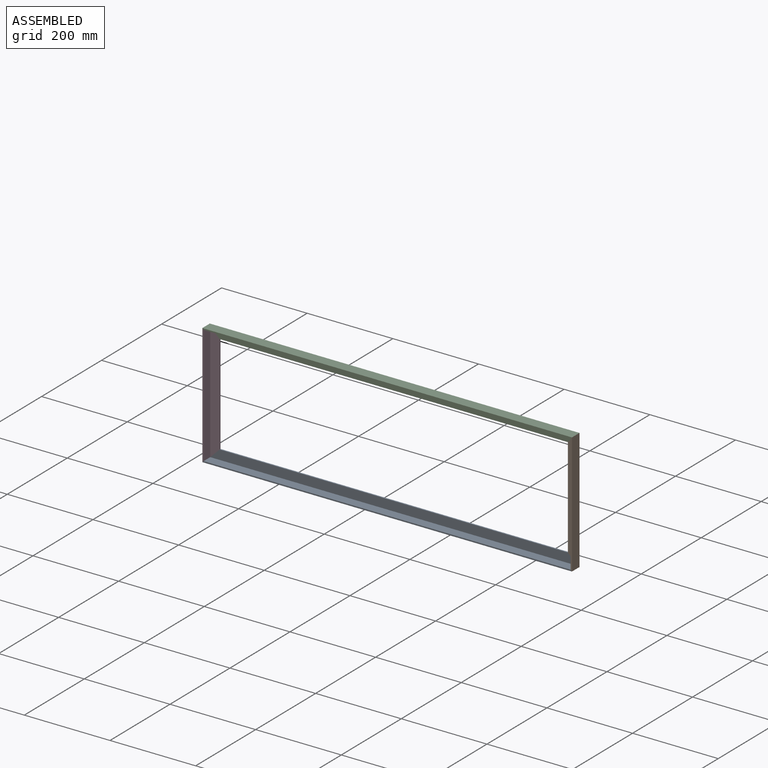
[diagram: assembled view]
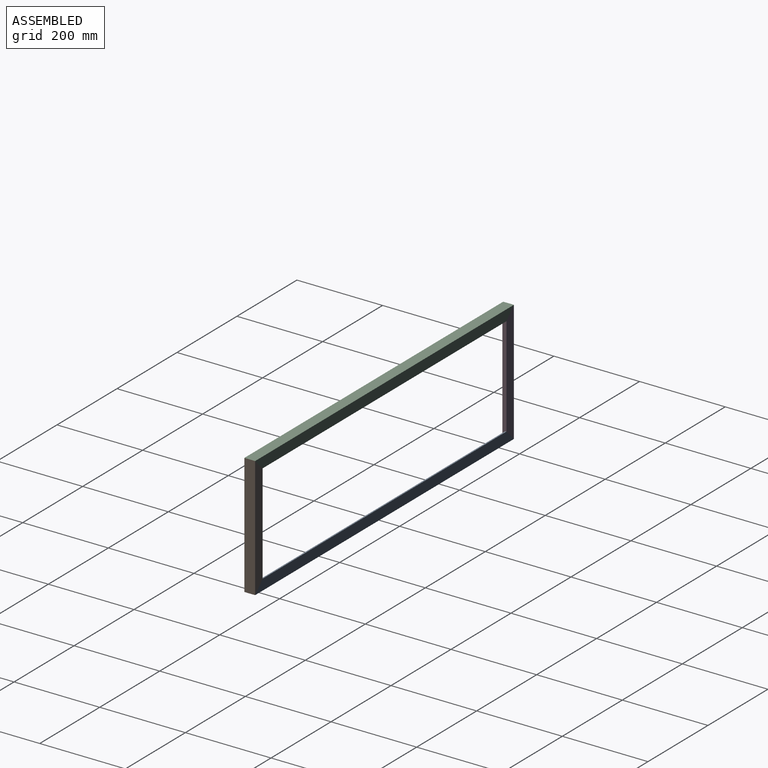
[diagram: assembled view, second angle]
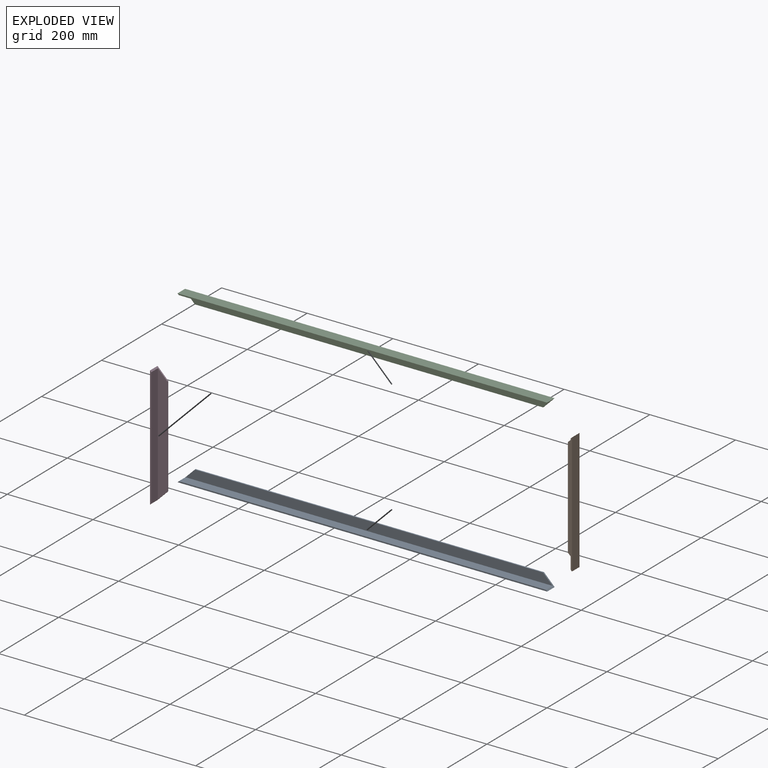
[diagram: exploded view]
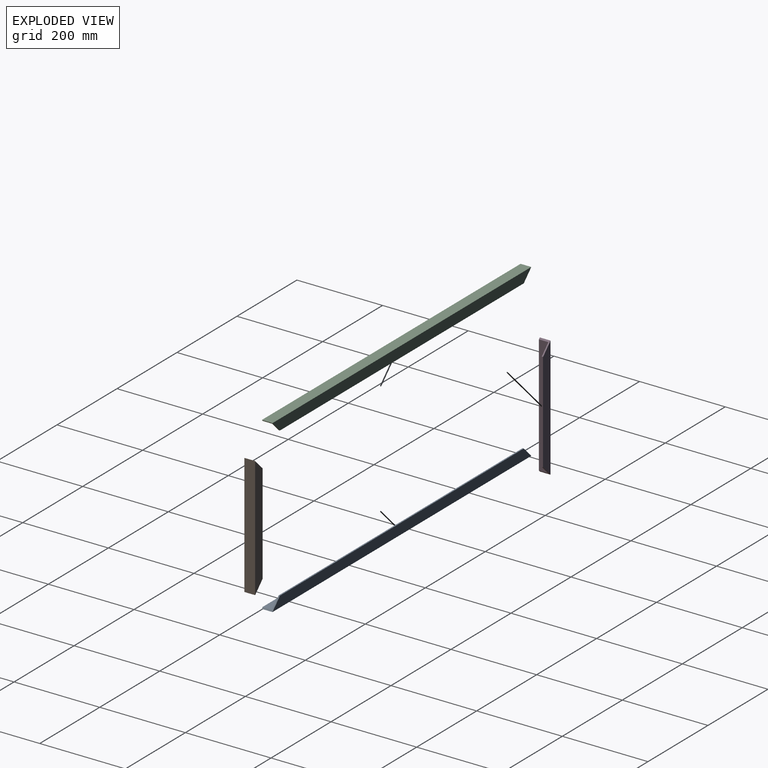
[diagram: exploded view, second angle]
ASSEMBLY  parts=4 mates=3
PART A: 8 faces, bbox 863x25x25 mm
  f0: plane 863x3mm, normal (0,-1,0), area 2580mm2, adj f3,f5,f6,f7
  f1: plane 813x3mm, normal (0,0,-1), area 2439mm2, adj f2,f4,f6,f7
  f2: plane 863x25mm, normal (0,1,0), area 20950mm2, adj f1,f5,f6,f7
  f3: plane 857x22mm, normal (0,0,-1), area 18854mm2, adj f0,f4,f6,f7
  f4: plane 857x22mm, normal (0,-1,0), area 18370mm2, adj f1,f3,f6,f7
  f5: plane 863x25mm, normal (0,0,1), area 21575mm2, adj f0,f2,f6,f7
  f6: plane 25x25mm, normal (-0.71,0,-0.71), area 199.4mm2, adj f0,f1,f2,f3,f4,f5
  f7: plane 25x25mm, normal (0.71,0,-0.71), area 199.4mm2, adj f0,f1,f2,f3,f4,f5
PART B: 8 faces, bbox 283x25x25 mm
  f0: plane 283x3mm, normal (0,-1,0), area 840mm2, adj f3,f5,f6,f7
  f1: plane 233x3mm, normal (0,0,-1), area 699mm2, adj f2,f4,f6,f7
  f2: plane 283x25mm, normal (0,1,0), area 6450mm2, adj f1,f5,f6,f7
  f3: plane 277x22mm, normal (0,0,-1), area 6094mm2, adj f0,f4,f6,f7
  f4: plane 277x22mm, normal (0,-1,0), area 5610mm2, adj f1,f3,f6,f7
  f5: plane 283x25mm, normal (0,0,1), area 7075mm2, adj f0,f2,f6,f7
  f6: plane 25x25mm, normal (-0.71,0,-0.71), area 199.4mm2, adj f0,f1,f2,f3,f4,f5
  f7: plane 25x25mm, normal (0.71,0,-0.71), area 199.4mm2, adj f0,f1,f2,f3,f4,f5
PART C: same geometry as A
PART D: same geometry as B
PLACE A rot(axis=(0,-1,0),180deg) t=(452.3,-89.63,-608.63)mm
PLACE B rot(axis=(0,1,0),90deg) t=(631.89,-26.14,-152.41)mm
PLACE C t=(-410.7,-89.63,20.81)mm fixed
PLACE D rot(axis=(0,-1,0),90deg) t=(-590.29,-26.14,-435.41)mm
MATE fastened B.f6 <-> C.f7  axis (-0.71,0,0.71) through (452.3,-93.02,-152.41)mm
MATE fastened D.f7 <-> C.f6  axis (0.71,0,0.71) through (-410.7,-93.02,-152.41)mm
MATE fastened A.f6 <-> B.f7  axis (0.71,0,0.71) through (452.3,-93.02,-435.41)mm
